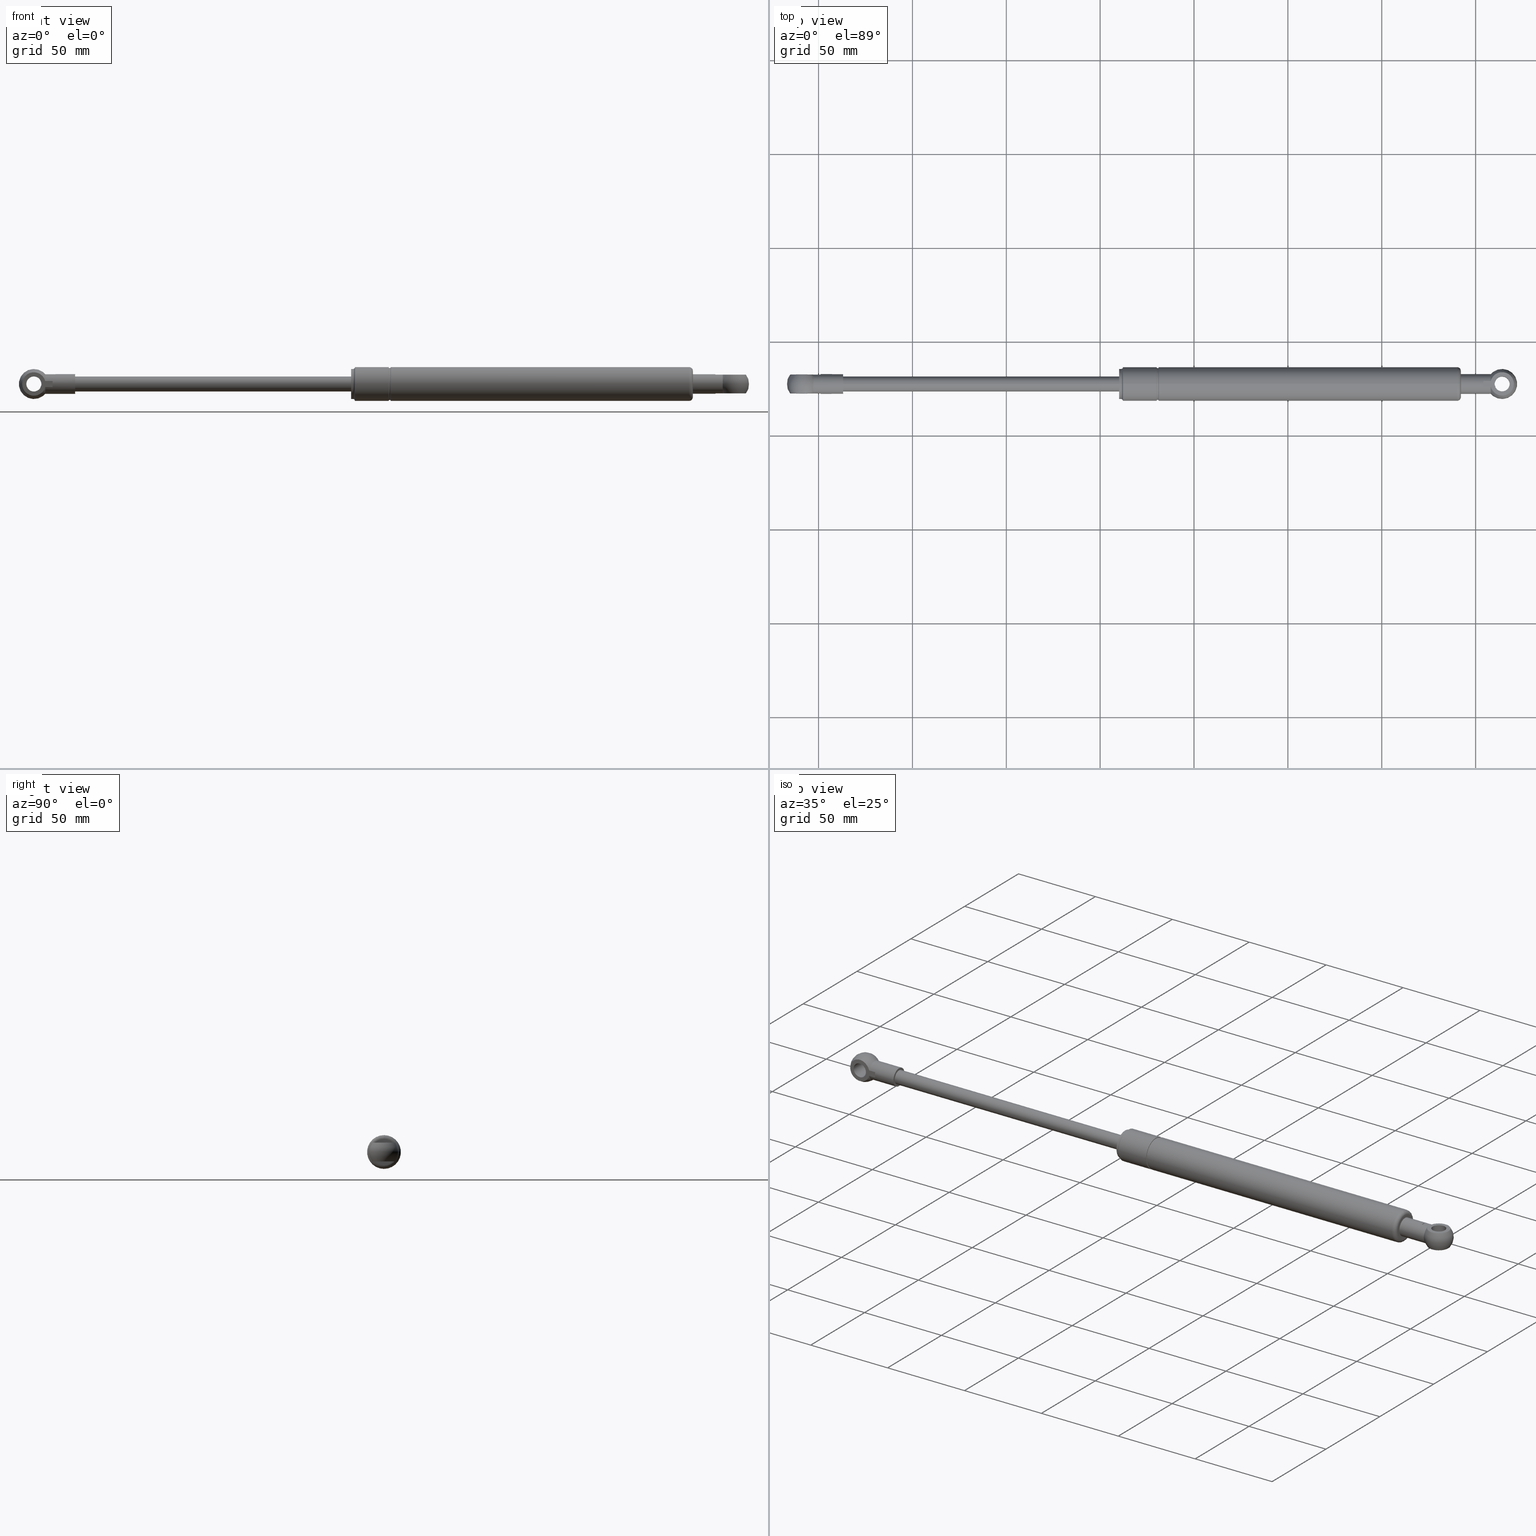
[diagram: canonical four-view strip — front | top / right | iso, engineering-drawing reading convention]
A machine part, canonical four-view strip (front | top / right | iso — engineering-drawing reading convention). The complete STEP part file that produces these views, byte-faithful:
ISO-10303-21;
HEADER;
/* Generated by software containing ST-Developer
 * from STEP Tools, Inc. (www.steptools.com) 
 */

FILE_DESCRIPTION(
/* description */ (''),
/* implementation_level */ '2;1');

FILE_NAME(
/* name */ '\\\\SYNOLOGYNAS\\web\\db2\\SBG-365-H\\\X2\B3C4BA74\X0\\\SB
G-365-H.stp',
/* time_stamp */ '2026-02-11T10:52:35+09:00',
/* author */ ('user'),
/* organization */ (''),
/* preprocessor_version */ 'ST-DEVELOPER v15.6',
/* originating_system */ 'Autodesk Inventor 2015',
/* authorisation */ '');

FILE_SCHEMA (('AUTOMOTIVE_DESIGN { 1 0 10303 214 3 1 1 }'));
ENDSEC;

DATA;
#10=MECHANICAL_DESIGN_GEOMETRIC_PRESENTATION_REPRESENTATION('',(#523,#513,
#520,#514,#522,#515,#521,#519,#518,#525,#517,#524,#528,#526,#530,#527,#531,
#529,#532,#533,#535,#536,#540,#534,#537,#539,#538,#541,#543,#545,#542,#544,
#508,#505,#509,#504,#506,#507,#503,#511,#512,#510,#516),#1085);
#11=ITEM_DEFINED_TRANSFORMATION($,$,#594,#686);
#12=ITEM_DEFINED_TRANSFORMATION($,$,#636,#687);
#13=ITEM_DEFINED_TRANSFORMATION($,$,#645,#688);
#14=ITEM_DEFINED_TRANSFORMATION($,$,#661,#689);
#15=ITEM_DEFINED_TRANSFORMATION($,$,#661,#690);
#16=(
REPRESENTATION_RELATIONSHIP($,$,#1107,#1111)
REPRESENTATION_RELATIONSHIP_WITH_TRANSFORMATION(#11)
SHAPE_REPRESENTATION_RELATIONSHIP()
);
#17=(
REPRESENTATION_RELATIONSHIP($,$,#1108,#1111)
REPRESENTATION_RELATIONSHIP_WITH_TRANSFORMATION(#12)
SHAPE_REPRESENTATION_RELATIONSHIP()
);
#18=(
REPRESENTATION_RELATIONSHIP($,$,#1109,#1111)
REPRESENTATION_RELATIONSHIP_WITH_TRANSFORMATION(#13)
SHAPE_REPRESENTATION_RELATIONSHIP()
);
#19=(
REPRESENTATION_RELATIONSHIP($,$,#1110,#1111)
REPRESENTATION_RELATIONSHIP_WITH_TRANSFORMATION(#14)
SHAPE_REPRESENTATION_RELATIONSHIP()
);
#20=(
REPRESENTATION_RELATIONSHIP($,$,#1110,#1111)
REPRESENTATION_RELATIONSHIP_WITH_TRANSFORMATION(#15)
SHAPE_REPRESENTATION_RELATIONSHIP()
);
#21=CONTEXT_DEPENDENT_SHAPE_REPRESENTATION(#16,#1102);
#22=CONTEXT_DEPENDENT_SHAPE_REPRESENTATION(#17,#1103);
#23=CONTEXT_DEPENDENT_SHAPE_REPRESENTATION(#18,#1104);
#24=CONTEXT_DEPENDENT_SHAPE_REPRESENTATION(#19,#1105);
#25=CONTEXT_DEPENDENT_SHAPE_REPRESENTATION(#20,#1106);
#26=NEXT_ASSEMBLY_USAGE_OCCURRENCE('SBG-365-H (3):1',$,$,#1117,#1113,$);
#27=NEXT_ASSEMBLY_USAGE_OCCURRENCE('SBG-365-H (1):1',$,$,#1117,#1114,$);
#28=NEXT_ASSEMBLY_USAGE_OCCURRENCE('SBG-365-H (2):1',$,$,#1117,#1115,$);
#29=NEXT_ASSEMBLY_USAGE_OCCURRENCE('\X2\B9C1D06CBCFC\X0\:1',$,$,#1117,#1116,
$);
#30=NEXT_ASSEMBLY_USAGE_OCCURRENCE('\X2\B9C1D06CBCFC\X0\:2',$,$,#1117,#1116,
$);
#31=SPHERICAL_SURFACE('',#681,8.);
#32=LINE('',#1045,#38);
#33=LINE('',#1047,#39);
#34=LINE('',#1049,#40);
#35=LINE('',#1056,#41);
#36=LINE('',#1058,#42);
#37=LINE('',#1060,#43);
#38=VECTOR('',#851,3.96365176617517);
#39=VECTOR('',#852,3.20156211871644);
#40=VECTOR('',#853,3.96365176617517);
#41=VECTOR('',#862,3.96365176617518);
#42=VECTOR('',#863,3.20156211871644);
#43=VECTOR('',#864,3.96365176617518);
#44=B_SPLINE_CURVE_WITH_KNOTS('',3,(#1003,#1004,#1005,#1006,#1007,#1008,
#1009,#1010,#1011,#1012,#1013,#1014,#1015,#1016,#1017,#1018,#1019,#1020,
#1021,#1022,#1023,#1024,#1025,#1026,#1027,#1028,#1029,#1030,#1031,#1032,
#1033,#1034,#1035,#1036),.UNSPECIFIED.,.T.,.F.,(4,2,2,2,2,2,2,2,2,2,2,2,
2,2,2,2,4),(0.,0.0330062979999495,0.0660125959998989,0.100331144962749,
0.134649693925599,0.168968242888448,0.203286791851298,0.236293089851248,
0.269299387851197,0.302305685851147,0.335311983851096,0.369630532813946,
0.403949081776796,0.438267630739646,0.472586179702495,0.505592477702445,
0.538598775702394),.UNSPECIFIED.);
#45=SHAPE_REPRESENTATION_RELATIONSHIP('SRR','None',#1107,#49);
#46=SHAPE_REPRESENTATION_RELATIONSHIP('SRR','None',#1108,#50);
#47=SHAPE_REPRESENTATION_RELATIONSHIP('SRR','None',#1109,#51);
#48=SHAPE_REPRESENTATION_RELATIONSHIP('SRR','None',#1110,#52);
#49=ADVANCED_BREP_SHAPE_REPRESENTATION($,(#53),#1080);
#50=ADVANCED_BREP_SHAPE_REPRESENTATION($,(#54),#1081);
#51=ADVANCED_BREP_SHAPE_REPRESENTATION($,(#55),#1082);
#52=ADVANCED_BREP_SHAPE_REPRESENTATION($,(#56),#1083);
#53=MANIFOLD_SOLID_BREP('\X2\C194B9ACB4DC\X0\1',#590);
#54=MANIFOLD_SOLID_BREP('\X2\C194B9ACB4DC\X0\1',#591);
#55=MANIFOLD_SOLID_BREP('\X2\C194B9ACB4DC\X0\1',#592);
#56=MANIFOLD_SOLID_BREP('\X2\C194B9ACB4DC\X0\2',#593);
#57=CONICAL_SURFACE('',#620,2.75,44.9999999999996);
#58=CONICAL_SURFACE('',#646,2.75,45.);
#59=CONICAL_SURFACE('',#662,2.7085,45.0000000000001);
#60=CONICAL_SURFACE('',#669,1.22925,59.);
#61=CYLINDRICAL_SURFACE('',#600,8.50000000000001);
#62=CYLINDRICAL_SURFACE('',#606,9.00000000000001);
#63=CYLINDRICAL_SURFACE('',#613,0.999999999999999);
#64=CYLINDRICAL_SURFACE('',#617,6.);
#65=CYLINDRICAL_SURFACE('',#619,7.00000000000002);
#66=CYLINDRICAL_SURFACE('',#624,3.);
#67=CYLINDRICAL_SURFACE('',#628,8.);
#68=CYLINDRICAL_SURFACE('',#633,9.00000000000001);
#69=CYLINDRICAL_SURFACE('',#637,7.);
#70=CYLINDRICAL_SURFACE('',#642,4.);
#71=CYLINDRICAL_SURFACE('',#649,3.);
#72=CYLINDRICAL_SURFACE('',#659,6.99999999999996);
#73=CYLINDRICAL_SURFACE('',#660,4.00000000000001);
#74=CYLINDRICAL_SURFACE('',#665,2.4585);
#75=CYLINDRICAL_SURFACE('',#670,4.);
#76=CYLINDRICAL_SURFACE('',#684,5.25);
#77=TOROIDAL_SURFACE('',#598,8.70000000000002,0.200000000000002);
#78=TOROIDAL_SURFACE('',#602,8.70000000000001,0.199999999999999);
#79=TOROIDAL_SURFACE('',#614,9.,3.);
#80=TOROIDAL_SURFACE('',#626,9.,1.);
#81=TOROIDAL_SURFACE('',#630,7.00000000000002,2.);
#82=FACE_BOUND('',#165,.T.);
#83=FACE_BOUND('',#167,.T.);
#84=FACE_BOUND('',#169,.T.);
#85=FACE_BOUND('',#171,.T.);
#86=FACE_BOUND('',#173,.T.);
#87=FACE_BOUND('',#175,.T.);
#88=FACE_BOUND('',#178,.T.);
#89=FACE_BOUND('',#180,.T.);
#90=FACE_BOUND('',#182,.T.);
#91=FACE_BOUND('',#184,.T.);
#92=FACE_BOUND('',#186,.T.);
#93=FACE_BOUND('',#188,.T.);
#94=FACE_BOUND('',#191,.T.);
#95=FACE_BOUND('',#193,.T.);
#96=FACE_BOUND('',#195,.T.);
#97=FACE_BOUND('',#197,.T.);
#98=FACE_BOUND('',#199,.T.);
#99=FACE_BOUND('',#201,.T.);
#100=FACE_BOUND('',#203,.T.);
#101=FACE_BOUND('',#205,.T.);
#102=FACE_BOUND('',#207,.T.);
#103=FACE_BOUND('',#209,.T.);
#104=FACE_BOUND('',#211,.T.);
#105=FACE_BOUND('',#213,.T.);
#106=FACE_BOUND('',#215,.T.);
#107=FACE_BOUND('',#218,.T.);
#108=FACE_BOUND('',#220,.T.);
#109=FACE_BOUND('',#223,.T.);
#110=FACE_BOUND('',#225,.T.);
#111=FACE_BOUND('',#227,.T.);
#112=FACE_BOUND('',#229,.T.);
#113=FACE_BOUND('',#231,.T.);
#114=FACE_BOUND('',#233,.T.);
#115=FACE_BOUND('',#235,.T.);
#116=FACE_BOUND('',#236,.T.);
#117=FACE_BOUND('',#238,.T.);
#118=FACE_BOUND('',#241,.T.);
#119=FACE_BOUND('',#245,.T.);
#120=FACE_OUTER_BOUND('',#164,.T.);
#121=FACE_OUTER_BOUND('',#166,.T.);
#122=FACE_OUTER_BOUND('',#168,.T.);
#123=FACE_OUTER_BOUND('',#170,.T.);
#124=FACE_OUTER_BOUND('',#172,.T.);
#125=FACE_OUTER_BOUND('',#174,.T.);
#126=FACE_OUTER_BOUND('',#176,.T.);
#127=FACE_OUTER_BOUND('',#177,.T.);
#128=FACE_OUTER_BOUND('',#179,.T.);
#129=FACE_OUTER_BOUND('',#181,.T.);
#130=FACE_OUTER_BOUND('',#183,.T.);
#131=FACE_OUTER_BOUND('',#185,.T.);
#132=FACE_OUTER_BOUND('',#187,.T.);
#133=FACE_OUTER_BOUND('',#189,.T.);
#134=FACE_OUTER_BOUND('',#190,.T.);
#135=FACE_OUTER_BOUND('',#192,.T.);
#136=FACE_OUTER_BOUND('',#194,.T.);
#137=FACE_OUTER_BOUND('',#196,.T.);
#138=FACE_OUTER_BOUND('',#198,.T.);
#139=FACE_OUTER_BOUND('',#200,.T.);
#140=FACE_OUTER_BOUND('',#202,.T.);
#141=FACE_OUTER_BOUND('',#204,.T.);
#142=FACE_OUTER_BOUND('',#206,.T.);
#143=FACE_OUTER_BOUND('',#208,.T.);
#144=FACE_OUTER_BOUND('',#210,.T.);
#145=FACE_OUTER_BOUND('',#212,.T.);
#146=FACE_OUTER_BOUND('',#214,.T.);
#147=FACE_OUTER_BOUND('',#216,.T.);
#148=FACE_OUTER_BOUND('',#217,.T.);
#149=FACE_OUTER_BOUND('',#219,.T.);
#150=FACE_OUTER_BOUND('',#221,.T.);
#151=FACE_OUTER_BOUND('',#222,.T.);
#152=FACE_OUTER_BOUND('',#224,.T.);
#153=FACE_OUTER_BOUND('',#226,.T.);
#154=FACE_OUTER_BOUND('',#228,.T.);
#155=FACE_OUTER_BOUND('',#230,.T.);
#156=FACE_OUTER_BOUND('',#232,.T.);
#157=FACE_OUTER_BOUND('',#234,.T.);
#158=FACE_OUTER_BOUND('',#237,.T.);
#159=FACE_OUTER_BOUND('',#239,.T.);
#160=FACE_OUTER_BOUND('',#240,.T.);
#161=FACE_OUTER_BOUND('',#242,.T.);
#162=FACE_OUTER_BOUND('',#243,.T.);
#163=FACE_OUTER_BOUND('',#244,.T.);
#164=EDGE_LOOP('',(#385));
#165=EDGE_LOOP('',(#386));
#166=EDGE_LOOP('',(#387));
#167=EDGE_LOOP('',(#388));
#168=EDGE_LOOP('',(#389));
#169=EDGE_LOOP('',(#390));
#170=EDGE_LOOP('',(#391));
#171=EDGE_LOOP('',(#392));
#172=EDGE_LOOP('',(#393));
#173=EDGE_LOOP('',(#394));
#174=EDGE_LOOP('',(#395));
#175=EDGE_LOOP('',(#396));
#176=EDGE_LOOP('',(#397));
#177=EDGE_LOOP('',(#398));
#178=EDGE_LOOP('',(#399));
#179=EDGE_LOOP('',(#400));
#180=EDGE_LOOP('',(#401));
#181=EDGE_LOOP('',(#402));
#182=EDGE_LOOP('',(#403));
#183=EDGE_LOOP('',(#404));
#184=EDGE_LOOP('',(#405));
#185=EDGE_LOOP('',(#406));
#186=EDGE_LOOP('',(#407));
#187=EDGE_LOOP('',(#408));
#188=EDGE_LOOP('',(#409));
#189=EDGE_LOOP('',(#410));
#190=EDGE_LOOP('',(#411));
#191=EDGE_LOOP('',(#412));
#192=EDGE_LOOP('',(#413));
#193=EDGE_LOOP('',(#414));
#194=EDGE_LOOP('',(#415));
#195=EDGE_LOOP('',(#416));
#196=EDGE_LOOP('',(#417));
#197=EDGE_LOOP('',(#418));
#198=EDGE_LOOP('',(#419));
#199=EDGE_LOOP('',(#420));
#200=EDGE_LOOP('',(#421));
#201=EDGE_LOOP('',(#422));
#202=EDGE_LOOP('',(#423));
#203=EDGE_LOOP('',(#424));
#204=EDGE_LOOP('',(#425));
#205=EDGE_LOOP('',(#426));
#206=EDGE_LOOP('',(#427));
#207=EDGE_LOOP('',(#428));
#208=EDGE_LOOP('',(#429));
#209=EDGE_LOOP('',(#430));
#210=EDGE_LOOP('',(#431));
#211=EDGE_LOOP('',(#432));
#212=EDGE_LOOP('',(#433));
#213=EDGE_LOOP('',(#434));
#214=EDGE_LOOP('',(#435));
#215=EDGE_LOOP('',(#436));
#216=EDGE_LOOP('',(#437));
#217=EDGE_LOOP('',(#438));
#218=EDGE_LOOP('',(#439));
#219=EDGE_LOOP('',(#440));
#220=EDGE_LOOP('',(#441));
#221=EDGE_LOOP('',(#442));
#222=EDGE_LOOP('',(#443));
#223=EDGE_LOOP('',(#444));
#224=EDGE_LOOP('',(#445));
#225=EDGE_LOOP('',(#446));
#226=EDGE_LOOP('',(#447));
#227=EDGE_LOOP('',(#448));
#228=EDGE_LOOP('',(#449));
#229=EDGE_LOOP('',(#450));
#230=EDGE_LOOP('',(#451));
#231=EDGE_LOOP('',(#452));
#232=EDGE_LOOP('',(#453));
#233=EDGE_LOOP('',(#454));
#234=EDGE_LOOP('',(#455));
#235=EDGE_LOOP('',(#456));
#236=EDGE_LOOP('',(#457));
#237=EDGE_LOOP('',(#458,#459,#460,#461));
#238=EDGE_LOOP('',(#462));
#239=EDGE_LOOP('',(#463,#464));
#240=EDGE_LOOP('',(#465,#466,#467,#468));
#241=EDGE_LOOP('',(#469));
#242=EDGE_LOOP('',(#470,#471));
#243=EDGE_LOOP('',(#472,#473,#474,#475));
#244=EDGE_LOOP('',(#476,#477,#478,#479,#480,#481,#482,#483));
#245=EDGE_LOOP('',(#484));
#246=CIRCLE('',#596,9.00000000000001);
#247=CIRCLE('',#597,8.70000000000001);
#248=CIRCLE('',#599,8.50000000000001);
#249=CIRCLE('',#601,8.50000000000001);
#250=CIRCLE('',#603,8.70000000000001);
#251=CIRCLE('',#605,9.00000000000001);
#252=CIRCLE('',#607,9.00000000000003);
#253=CIRCLE('',#609,0.999999999999999);
#254=CIRCLE('',#611,7.00000000000002);
#255=CIRCLE('',#612,0.999999999999999);
#256=CIRCLE('',#615,6.);
#257=CIRCLE('',#616,7.00000000000002);
#258=CIRCLE('',#618,6.);
#259=CIRCLE('',#621,2.5);
#260=CIRCLE('',#622,3.);
#261=CIRCLE('',#625,3.);
#262=CIRCLE('',#627,8.);
#263=CIRCLE('',#629,8.);
#264=CIRCLE('',#631,9.00000000000001);
#265=CIRCLE('',#632,7.00000000000002);
#266=CIRCLE('',#638,7.);
#267=CIRCLE('',#639,7.);
#268=CIRCLE('',#641,4.);
#269=CIRCLE('',#643,4.);
#270=CIRCLE('',#647,3.);
#271=CIRCLE('',#648,2.5);
#272=CIRCLE('',#650,3.);
#273=CIRCLE('',#653,4.00000000000001);
#274=CIRCLE('',#655,6.99999999999995);
#275=CIRCLE('',#656,4.);
#276=CIRCLE('',#658,6.99999999999998);
#277=CIRCLE('',#663,2.4585);
#278=CIRCLE('',#664,2.9585);
#279=CIRCLE('',#666,2.4585);
#280=CIRCLE('',#668,5.25);
#281=CIRCLE('',#671,4.);
#282=CIRCLE('',#672,4.);
#283=CIRCLE('',#674,6.2449979983984);
#284=CIRCLE('',#676,5.25);
#285=CIRCLE('',#678,6.2449979983984);
#286=CIRCLE('',#680,5.25);
#287=CIRCLE('',#682,5.25);
#288=CIRCLE('',#683,5.25);
#289=VERTEX_POINT('',#893);
#290=VERTEX_POINT('',#895);
#291=VERTEX_POINT('',#898);
#292=VERTEX_POINT('',#901);
#293=VERTEX_POINT('',#904);
#294=VERTEX_POINT('',#907);
#295=VERTEX_POINT('',#910);
#296=VERTEX_POINT('',#913);
#297=VERTEX_POINT('',#916);
#298=VERTEX_POINT('',#918);
#299=VERTEX_POINT('',#922);
#300=VERTEX_POINT('',#924);
#301=VERTEX_POINT('',#927);
#302=VERTEX_POINT('',#931);
#303=VERTEX_POINT('',#933);
#304=VERTEX_POINT('',#937);
#305=VERTEX_POINT('',#940);
#306=VERTEX_POINT('',#943);
#307=VERTEX_POINT('',#946);
#308=VERTEX_POINT('',#948);
#309=VERTEX_POINT('',#955);
#310=VERTEX_POINT('',#957);
#311=VERTEX_POINT('',#960);
#312=VERTEX_POINT('',#963);
#313=VERTEX_POINT('',#968);
#314=VERTEX_POINT('',#970);
#315=VERTEX_POINT('',#973);
#316=VERTEX_POINT('',#977);
#317=VERTEX_POINT('',#980);
#318=VERTEX_POINT('',#982);
#319=VERTEX_POINT('',#985);
#320=VERTEX_POINT('',#991);
#321=VERTEX_POINT('',#993);
#322=VERTEX_POINT('',#996);
#323=VERTEX_POINT('',#999);
#324=VERTEX_POINT('',#1002);
#325=VERTEX_POINT('',#1038);
#326=VERTEX_POINT('',#1040);
#327=VERTEX_POINT('',#1043);
#328=VERTEX_POINT('',#1044);
#329=VERTEX_POINT('',#1046);
#330=VERTEX_POINT('',#1048);
#331=VERTEX_POINT('',#1054);
#332=VERTEX_POINT('',#1055);
#333=VERTEX_POINT('',#1057);
#334=VERTEX_POINT('',#1059);
#335=EDGE_CURVE('',#289,#289,#246,.T.);
#336=EDGE_CURVE('',#290,#290,#247,.T.);
#337=EDGE_CURVE('',#291,#291,#248,.T.);
#338=EDGE_CURVE('',#292,#292,#249,.T.);
#339=EDGE_CURVE('',#293,#293,#250,.T.);
#340=EDGE_CURVE('',#294,#294,#251,.T.);
#341=EDGE_CURVE('',#295,#295,#252,.T.);
#342=EDGE_CURVE('',#296,#296,#253,.T.);
#343=EDGE_CURVE('',#297,#297,#254,.T.);
#344=EDGE_CURVE('',#298,#298,#255,.T.);
#345=EDGE_CURVE('',#299,#299,#256,.T.);
#346=EDGE_CURVE('',#300,#300,#257,.F.);
#347=EDGE_CURVE('',#301,#301,#258,.T.);
#348=EDGE_CURVE('',#302,#302,#259,.T.);
#349=EDGE_CURVE('',#303,#303,#260,.T.);
#350=EDGE_CURVE('',#304,#304,#261,.T.);
#351=EDGE_CURVE('',#305,#305,#262,.T.);
#352=EDGE_CURVE('',#306,#306,#263,.T.);
#353=EDGE_CURVE('',#307,#307,#264,.T.);
#354=EDGE_CURVE('',#308,#308,#265,.T.);
#355=EDGE_CURVE('',#309,#309,#266,.T.);
#356=EDGE_CURVE('',#310,#310,#267,.T.);
#357=EDGE_CURVE('',#311,#311,#268,.T.);
#358=EDGE_CURVE('',#312,#312,#269,.T.);
#359=EDGE_CURVE('',#313,#313,#270,.T.);
#360=EDGE_CURVE('',#314,#314,#271,.T.);
#361=EDGE_CURVE('',#315,#315,#272,.T.);
#362=EDGE_CURVE('',#316,#316,#273,.T.);
#363=EDGE_CURVE('',#317,#317,#274,.T.);
#364=EDGE_CURVE('',#318,#318,#275,.T.);
#365=EDGE_CURVE('',#319,#319,#276,.T.);
#366=EDGE_CURVE('',#320,#320,#277,.T.);
#367=EDGE_CURVE('',#321,#321,#278,.T.);
#368=EDGE_CURVE('',#322,#322,#279,.T.);
#369=EDGE_CURVE('',#323,#323,#280,.T.);
#370=EDGE_CURVE('',#324,#324,#44,.T.);
#371=EDGE_CURVE('',#325,#325,#281,.T.);
#372=EDGE_CURVE('',#326,#326,#282,.T.);
#373=EDGE_CURVE('',#327,#328,#32,.T.);
#374=EDGE_CURVE('',#327,#329,#33,.T.);
#375=EDGE_CURVE('',#330,#329,#34,.T.);
#376=EDGE_CURVE('',#328,#330,#283,.T.);
#377=EDGE_CURVE('',#329,#327,#284,.T.);
#378=EDGE_CURVE('',#331,#332,#35,.T.);
#379=EDGE_CURVE('',#331,#333,#36,.T.);
#380=EDGE_CURVE('',#334,#333,#37,.T.);
#381=EDGE_CURVE('',#332,#334,#285,.T.);
#382=EDGE_CURVE('',#333,#331,#286,.T.);
#383=EDGE_CURVE('',#330,#332,#287,.T.);
#384=EDGE_CURVE('',#334,#328,#288,.T.);
#385=ORIENTED_EDGE('',*,*,#335,.F.);
#386=ORIENTED_EDGE('',*,*,#336,.T.);
#387=ORIENTED_EDGE('',*,*,#336,.F.);
#388=ORIENTED_EDGE('',*,*,#337,.T.);
#389=ORIENTED_EDGE('',*,*,#337,.F.);
#390=ORIENTED_EDGE('',*,*,#338,.T.);
#391=ORIENTED_EDGE('',*,*,#338,.F.);
#392=ORIENTED_EDGE('',*,*,#339,.T.);
#393=ORIENTED_EDGE('',*,*,#340,.F.);
#394=ORIENTED_EDGE('',*,*,#339,.F.);
#395=ORIENTED_EDGE('',*,*,#341,.T.);
#396=ORIENTED_EDGE('',*,*,#340,.T.);
#397=ORIENTED_EDGE('',*,*,#342,.T.);
#398=ORIENTED_EDGE('',*,*,#343,.T.);
#399=ORIENTED_EDGE('',*,*,#344,.F.);
#400=ORIENTED_EDGE('',*,*,#342,.F.);
#401=ORIENTED_EDGE('',*,*,#344,.T.);
#402=ORIENTED_EDGE('',*,*,#345,.F.);
#403=ORIENTED_EDGE('',*,*,#346,.T.);
#404=ORIENTED_EDGE('',*,*,#347,.F.);
#405=ORIENTED_EDGE('',*,*,#345,.T.);
#406=ORIENTED_EDGE('',*,*,#343,.F.);
#407=ORIENTED_EDGE('',*,*,#346,.F.);
#408=ORIENTED_EDGE('',*,*,#348,.T.);
#409=ORIENTED_EDGE('',*,*,#349,.T.);
#410=ORIENTED_EDGE('',*,*,#348,.F.);
#411=ORIENTED_EDGE('',*,*,#350,.F.);
#412=ORIENTED_EDGE('',*,*,#349,.F.);
#413=ORIENTED_EDGE('',*,*,#351,.T.);
#414=ORIENTED_EDGE('',*,*,#341,.F.);
#415=ORIENTED_EDGE('',*,*,#352,.T.);
#416=ORIENTED_EDGE('',*,*,#351,.F.);
#417=ORIENTED_EDGE('',*,*,#353,.T.);
#418=ORIENTED_EDGE('',*,*,#354,.T.);
#419=ORIENTED_EDGE('',*,*,#335,.T.);
#420=ORIENTED_EDGE('',*,*,#353,.F.);
#421=ORIENTED_EDGE('',*,*,#354,.F.);
#422=ORIENTED_EDGE('',*,*,#350,.T.);
#423=ORIENTED_EDGE('',*,*,#352,.F.);
#424=ORIENTED_EDGE('',*,*,#347,.T.);
#425=ORIENTED_EDGE('',*,*,#355,.F.);
#426=ORIENTED_EDGE('',*,*,#356,.T.);
#427=ORIENTED_EDGE('',*,*,#355,.T.);
#428=ORIENTED_EDGE('',*,*,#357,.F.);
#429=ORIENTED_EDGE('',*,*,#358,.F.);
#430=ORIENTED_EDGE('',*,*,#357,.T.);
#431=ORIENTED_EDGE('',*,*,#356,.F.);
#432=ORIENTED_EDGE('',*,*,#358,.T.);
#433=ORIENTED_EDGE('',*,*,#359,.T.);
#434=ORIENTED_EDGE('',*,*,#360,.T.);
#435=ORIENTED_EDGE('',*,*,#361,.T.);
#436=ORIENTED_EDGE('',*,*,#359,.F.);
#437=ORIENTED_EDGE('',*,*,#360,.F.);
#438=ORIENTED_EDGE('',*,*,#362,.F.);
#439=ORIENTED_EDGE('',*,*,#361,.F.);
#440=ORIENTED_EDGE('',*,*,#363,.T.);
#441=ORIENTED_EDGE('',*,*,#364,.F.);
#442=ORIENTED_EDGE('',*,*,#365,.F.);
#443=ORIENTED_EDGE('',*,*,#363,.F.);
#444=ORIENTED_EDGE('',*,*,#365,.T.);
#445=ORIENTED_EDGE('',*,*,#362,.T.);
#446=ORIENTED_EDGE('',*,*,#364,.T.);
#447=ORIENTED_EDGE('',*,*,#366,.T.);
#448=ORIENTED_EDGE('',*,*,#367,.T.);
#449=ORIENTED_EDGE('',*,*,#368,.F.);
#450=ORIENTED_EDGE('',*,*,#366,.F.);
#451=ORIENTED_EDGE('',*,*,#369,.T.);
#452=ORIENTED_EDGE('',*,*,#367,.F.);
#453=ORIENTED_EDGE('',*,*,#370,.F.);
#454=ORIENTED_EDGE('',*,*,#368,.T.);
#455=ORIENTED_EDGE('',*,*,#371,.F.);
#456=ORIENTED_EDGE('',*,*,#370,.T.);
#457=ORIENTED_EDGE('',*,*,#372,.F.);
#458=ORIENTED_EDGE('',*,*,#373,.F.);
#459=ORIENTED_EDGE('',*,*,#374,.T.);
#460=ORIENTED_EDGE('',*,*,#375,.F.);
#461=ORIENTED_EDGE('',*,*,#376,.F.);
#462=ORIENTED_EDGE('',*,*,#371,.T.);
#463=ORIENTED_EDGE('',*,*,#377,.F.);
#464=ORIENTED_EDGE('',*,*,#374,.F.);
#465=ORIENTED_EDGE('',*,*,#378,.F.);
#466=ORIENTED_EDGE('',*,*,#379,.T.);
#467=ORIENTED_EDGE('',*,*,#380,.F.);
#468=ORIENTED_EDGE('',*,*,#381,.F.);
#469=ORIENTED_EDGE('',*,*,#372,.T.);
#470=ORIENTED_EDGE('',*,*,#382,.F.);
#471=ORIENTED_EDGE('',*,*,#379,.F.);
#472=ORIENTED_EDGE('',*,*,#376,.T.);
#473=ORIENTED_EDGE('',*,*,#383,.T.);
#474=ORIENTED_EDGE('',*,*,#381,.T.);
#475=ORIENTED_EDGE('',*,*,#384,.T.);
#476=ORIENTED_EDGE('',*,*,#373,.T.);
#477=ORIENTED_EDGE('',*,*,#384,.F.);
#478=ORIENTED_EDGE('',*,*,#380,.T.);
#479=ORIENTED_EDGE('',*,*,#382,.T.);
#480=ORIENTED_EDGE('',*,*,#378,.T.);
#481=ORIENTED_EDGE('',*,*,#383,.F.);
#482=ORIENTED_EDGE('',*,*,#375,.T.);
#483=ORIENTED_EDGE('',*,*,#377,.T.);
#484=ORIENTED_EDGE('',*,*,#369,.F.);
#485=PLANE('',#595);
#486=PLANE('',#604);
#487=PLANE('',#608);
#488=PLANE('',#610);
#489=PLANE('',#623);
#490=PLANE('',#634);
#491=PLANE('',#635);
#492=PLANE('',#640);
#493=PLANE('',#644);
#494=PLANE('',#651);
#495=PLANE('',#652);
#496=PLANE('',#654);
#497=PLANE('',#657);
#498=PLANE('',#667);
#499=PLANE('',#673);
#500=PLANE('',#675);
#501=PLANE('',#677);
#502=PLANE('',#679);
#503=STYLED_ITEM('',(#1138),#546);
#504=STYLED_ITEM('',(#1138),#547);
#505=STYLED_ITEM('',(#1138),#548);
#506=STYLED_ITEM('',(#1138),#549);
#507=STYLED_ITEM('',(#1138),#550);
#508=STYLED_ITEM('',(#1138),#551);
#509=STYLED_ITEM('',(#1138),#552);
#510=STYLED_ITEM('',(#1138),#553);
#511=STYLED_ITEM('',(#1138),#554);
#512=STYLED_ITEM('',(#1138),#555);
#513=STYLED_ITEM('',(#1138),#556);
#514=STYLED_ITEM('',(#1138),#557);
#515=STYLED_ITEM('',(#1138),#558);
#516=STYLED_ITEM('',(#1138),#559);
#517=STYLED_ITEM('',(#1138),#560);
#518=STYLED_ITEM('',(#1138),#561);
#519=STYLED_ITEM('',(#1138),#562);
#520=STYLED_ITEM('',(#1138),#563);
#521=STYLED_ITEM('',(#1138),#564);
#522=STYLED_ITEM('',(#1138),#565);
#523=STYLED_ITEM('',(#1138),#566);
#524=STYLED_ITEM('',(#1137),#53);
#525=STYLED_ITEM('',(#1139),#567);
#526=STYLED_ITEM('',(#1139),#568);
#527=STYLED_ITEM('',(#1139),#569);
#528=STYLED_ITEM('',(#1139),#570);
#529=STYLED_ITEM('',(#1139),#54);
#530=STYLED_ITEM('',(#1140),#575);
#531=STYLED_ITEM('',(#1140),#576);
#532=STYLED_ITEM('',(#1140),#577);
#533=STYLED_ITEM('',(#1140),#55);
#534=STYLED_ITEM('',(#1141),#579);
#535=STYLED_ITEM('',(#1141),#580);
#536=STYLED_ITEM('',(#1141),#581);
#537=STYLED_ITEM('',(#1141),#582);
#538=STYLED_ITEM('',(#1141),#583);
#539=STYLED_ITEM('',(#1141),#584);
#540=STYLED_ITEM('',(#1141),#585);
#541=STYLED_ITEM('',(#1141),#586);
#542=STYLED_ITEM('',(#1141),#587);
#543=STYLED_ITEM('',(#1141),#588);
#544=STYLED_ITEM('',(#1141),#589);
#545=STYLED_ITEM('',(#1137),#56);
#546=ADVANCED_FACE('',(#120,#82),#485,.F.);
#547=ADVANCED_FACE('',(#121,#83),#77,.F.);
#548=ADVANCED_FACE('',(#122,#84),#61,.T.);
#549=ADVANCED_FACE('',(#123,#85),#78,.F.);
#550=ADVANCED_FACE('',(#124,#86),#486,.F.);
#551=ADVANCED_FACE('',(#125,#87),#62,.T.);
#552=ADVANCED_FACE('',(#126),#487,.F.);
#553=ADVANCED_FACE('',(#127,#88),#488,.F.);
#554=ADVANCED_FACE('',(#128,#89),#63,.F.);
#555=ADVANCED_FACE('',(#129,#90),#79,.T.);
#556=ADVANCED_FACE('',(#130,#91),#64,.F.);
#557=ADVANCED_FACE('',(#131,#92),#65,.F.);
#558=ADVANCED_FACE('',(#132,#93),#57,.T.);
#559=ADVANCED_FACE('',(#133),#489,.T.);
#560=ADVANCED_FACE('',(#134,#94),#66,.T.);
#561=ADVANCED_FACE('',(#135,#95),#80,.F.);
#562=ADVANCED_FACE('',(#136,#96),#67,.T.);
#563=ADVANCED_FACE('',(#137,#97),#81,.T.);
#564=ADVANCED_FACE('',(#138,#98),#68,.T.);
#565=ADVANCED_FACE('',(#139,#99),#490,.T.);
#566=ADVANCED_FACE('',(#140,#100),#491,.T.);
#567=ADVANCED_FACE('',(#141,#101),#69,.T.);
#568=ADVANCED_FACE('',(#142,#102),#492,.T.);
#569=ADVANCED_FACE('',(#143,#103),#70,.F.);
#570=ADVANCED_FACE('',(#144,#104),#493,.T.);
#571=ADVANCED_FACE('',(#145,#105),#58,.T.);
#572=ADVANCED_FACE('',(#146,#106),#71,.T.);
#573=ADVANCED_FACE('',(#147),#494,.F.);
#574=ADVANCED_FACE('',(#148,#107),#495,.F.);
#575=ADVANCED_FACE('',(#149,#108),#496,.T.);
#576=ADVANCED_FACE('',(#150),#497,.T.);
#577=ADVANCED_FACE('',(#151,#109),#72,.T.);
#578=ADVANCED_FACE('',(#152,#110),#73,.T.);
#579=ADVANCED_FACE('',(#153,#111),#59,.F.);
#580=ADVANCED_FACE('',(#154,#112),#74,.F.);
#581=ADVANCED_FACE('',(#155,#113),#498,.T.);
#582=ADVANCED_FACE('',(#156,#114),#60,.F.);
#583=ADVANCED_FACE('',(#157,#115,#116),#75,.F.);
#584=ADVANCED_FACE('',(#158,#117),#499,.F.);
#585=ADVANCED_FACE('',(#159),#500,.F.);
#586=ADVANCED_FACE('',(#160,#118),#501,.F.);
#587=ADVANCED_FACE('',(#161),#502,.F.);
#588=ADVANCED_FACE('',(#162),#31,.T.);
#589=ADVANCED_FACE('',(#163,#119),#76,.T.);
#590=CLOSED_SHELL('',(#546,#547,#548,#549,#550,#551,#552,#553,#554,#555,
#556,#557,#558,#559,#560,#561,#562,#563,#564,#565,#566));
#591=CLOSED_SHELL('',(#567,#568,#569,#570));
#592=CLOSED_SHELL('',(#571,#572,#573,#574,#575,#576,#577,#578));
#593=CLOSED_SHELL('',(#579,#580,#581,#582,#583,#584,#585,#586,#587,#588,
#589));
#594=AXIS2_PLACEMENT_3D('placement',#891,#691,#692);
#595=AXIS2_PLACEMENT_3D('',#892,#693,#694);
#596=AXIS2_PLACEMENT_3D('',#894,#695,#696);
#597=AXIS2_PLACEMENT_3D('',#896,#697,#698);
#598=AXIS2_PLACEMENT_3D('',#897,#699,#700);
#599=AXIS2_PLACEMENT_3D('',#899,#701,#702);
#600=AXIS2_PLACEMENT_3D('',#900,#703,#704);
#601=AXIS2_PLACEMENT_3D('',#902,#705,#706);
#602=AXIS2_PLACEMENT_3D('',#903,#707,#708);
#603=AXIS2_PLACEMENT_3D('',#905,#709,#710);
#604=AXIS2_PLACEMENT_3D('',#906,#711,#712);
#605=AXIS2_PLACEMENT_3D('',#908,#713,#714);
#606=AXIS2_PLACEMENT_3D('',#909,#715,#716);
#607=AXIS2_PLACEMENT_3D('',#911,#717,#718);
#608=AXIS2_PLACEMENT_3D('',#912,#719,#720);
#609=AXIS2_PLACEMENT_3D('',#914,#721,#722);
#610=AXIS2_PLACEMENT_3D('',#915,#723,#724);
#611=AXIS2_PLACEMENT_3D('',#917,#725,#726);
#612=AXIS2_PLACEMENT_3D('',#919,#727,#728);
#613=AXIS2_PLACEMENT_3D('',#920,#729,#730);
#614=AXIS2_PLACEMENT_3D('',#921,#731,#732);
#615=AXIS2_PLACEMENT_3D('',#923,#733,#734);
#616=AXIS2_PLACEMENT_3D('',#925,#735,#736);
#617=AXIS2_PLACEMENT_3D('',#926,#737,#738);
#618=AXIS2_PLACEMENT_3D('',#928,#739,#740);
#619=AXIS2_PLACEMENT_3D('',#929,#741,#742);
#620=AXIS2_PLACEMENT_3D('',#930,#743,#744);
#621=AXIS2_PLACEMENT_3D('',#932,#745,#746);
#622=AXIS2_PLACEMENT_3D('',#934,#747,#748);
#623=AXIS2_PLACEMENT_3D('',#935,#749,#750);
#624=AXIS2_PLACEMENT_3D('',#936,#751,#752);
#625=AXIS2_PLACEMENT_3D('',#938,#753,#754);
#626=AXIS2_PLACEMENT_3D('',#939,#755,#756);
#627=AXIS2_PLACEMENT_3D('',#941,#757,#758);
#628=AXIS2_PLACEMENT_3D('',#942,#759,#760);
#629=AXIS2_PLACEMENT_3D('',#944,#761,#762);
#630=AXIS2_PLACEMENT_3D('',#945,#763,#764);
#631=AXIS2_PLACEMENT_3D('',#947,#765,#766);
#632=AXIS2_PLACEMENT_3D('',#949,#767,#768);
#633=AXIS2_PLACEMENT_3D('',#950,#769,#770);
#634=AXIS2_PLACEMENT_3D('',#951,#771,#772);
#635=AXIS2_PLACEMENT_3D('',#952,#773,#774);
#636=AXIS2_PLACEMENT_3D('placement',#953,#775,#776);
#637=AXIS2_PLACEMENT_3D('',#954,#777,#778);
#638=AXIS2_PLACEMENT_3D('',#956,#779,#780);
#639=AXIS2_PLACEMENT_3D('',#958,#781,#782);
#640=AXIS2_PLACEMENT_3D('',#959,#783,#784);
#641=AXIS2_PLACEMENT_3D('',#961,#785,#786);
#642=AXIS2_PLACEMENT_3D('',#962,#787,#788);
#643=AXIS2_PLACEMENT_3D('',#964,#789,#790);
#644=AXIS2_PLACEMENT_3D('',#965,#791,#792);
#645=AXIS2_PLACEMENT_3D('placement',#966,#793,#794);
#646=AXIS2_PLACEMENT_3D('',#967,#795,#796);
#647=AXIS2_PLACEMENT_3D('',#969,#797,#798);
#648=AXIS2_PLACEMENT_3D('',#971,#799,#800);
#649=AXIS2_PLACEMENT_3D('',#972,#801,#802);
#650=AXIS2_PLACEMENT_3D('',#974,#803,#804);
#651=AXIS2_PLACEMENT_3D('',#975,#805,#806);
#652=AXIS2_PLACEMENT_3D('',#976,#807,#808);
#653=AXIS2_PLACEMENT_3D('',#978,#809,#810);
#654=AXIS2_PLACEMENT_3D('',#979,#811,#812);
#655=AXIS2_PLACEMENT_3D('',#981,#813,#814);
#656=AXIS2_PLACEMENT_3D('',#983,#815,#816);
#657=AXIS2_PLACEMENT_3D('',#984,#817,#818);
#658=AXIS2_PLACEMENT_3D('',#986,#819,#820);
#659=AXIS2_PLACEMENT_3D('',#987,#821,#822);
#660=AXIS2_PLACEMENT_3D('',#988,#823,#824);
#661=AXIS2_PLACEMENT_3D('placement',#989,#825,#826);
#662=AXIS2_PLACEMENT_3D('',#990,#827,#828);
#663=AXIS2_PLACEMENT_3D('',#992,#829,#830);
#664=AXIS2_PLACEMENT_3D('',#994,#831,#832);
#665=AXIS2_PLACEMENT_3D('',#995,#833,#834);
#666=AXIS2_PLACEMENT_3D('',#997,#835,#836);
#667=AXIS2_PLACEMENT_3D('',#998,#837,#838);
#668=AXIS2_PLACEMENT_3D('',#1000,#839,#840);
#669=AXIS2_PLACEMENT_3D('',#1001,#841,#842);
#670=AXIS2_PLACEMENT_3D('',#1037,#843,#844);
#671=AXIS2_PLACEMENT_3D('',#1039,#845,#846);
#672=AXIS2_PLACEMENT_3D('',#1041,#847,#848);
#673=AXIS2_PLACEMENT_3D('',#1042,#849,#850);
#674=AXIS2_PLACEMENT_3D('',#1050,#854,#855);
#675=AXIS2_PLACEMENT_3D('',#1051,#856,#857);
#676=AXIS2_PLACEMENT_3D('',#1052,#858,#859);
#677=AXIS2_PLACEMENT_3D('',#1053,#860,#861);
#678=AXIS2_PLACEMENT_3D('',#1061,#865,#866);
#679=AXIS2_PLACEMENT_3D('',#1062,#867,#868);
#680=AXIS2_PLACEMENT_3D('',#1063,#869,#870);
#681=AXIS2_PLACEMENT_3D('',#1064,#871,#872);
#682=AXIS2_PLACEMENT_3D('',#1065,#873,#874);
#683=AXIS2_PLACEMENT_3D('',#1066,#875,#876);
#684=AXIS2_PLACEMENT_3D('',#1067,#877,#878);
#685=AXIS2_PLACEMENT_3D('placement',#1068,#879,#880);
#686=AXIS2_PLACEMENT_3D('',#1069,#881,#882);
#687=AXIS2_PLACEMENT_3D('',#1070,#883,#884);
#688=AXIS2_PLACEMENT_3D('',#1071,#885,#886);
#689=AXIS2_PLACEMENT_3D('',#1072,#887,#888);
#690=AXIS2_PLACEMENT_3D('',#1073,#889,#890);
#691=DIRECTION('axis',(0.,0.,1.));
#692=DIRECTION('refdir',(1.,0.,0.));
#693=DIRECTION('center_axis',(1.,0.,-1.20871055100319E-16));
#694=DIRECTION('ref_axis',(0.,0.,-1.));
#695=DIRECTION('center_axis',(1.,0.,-1.20871055100319E-16));
#696=DIRECTION('ref_axis',(1.22464679914735E-16,0.,1.));
#697=DIRECTION('center_axis',(1.,0.,-1.20871055100319E-16));
#698=DIRECTION('ref_axis',(-1.20871055100319E-16,0.,-1.));
#699=DIRECTION('center_axis',(1.,0.,-1.20871055100319E-16));
#700=DIRECTION('ref_axis',(0.,0.,-1.));
#701=DIRECTION('center_axis',(1.,0.,-1.20871055100319E-16));
#702=DIRECTION('ref_axis',(-1.2087105510032E-16,0.,-1.));
#703=DIRECTION('center_axis',(1.,0.,-1.20871055100319E-16));
#704=DIRECTION('ref_axis',(0.,0.,1.));
#705=DIRECTION('center_axis',(1.,0.,-1.20871055100319E-16));
#706=DIRECTION('ref_axis',(-1.2087105510032E-16,0.,-1.));
#707=DIRECTION('center_axis',(1.,0.,-1.20871055100319E-16));
#708=DIRECTION('ref_axis',(0.,0.,-1.));
#709=DIRECTION('center_axis',(1.,0.,-1.20871055100319E-16));
#710=DIRECTION('ref_axis',(-1.2087105510032E-16,0.,-1.));
#711=DIRECTION('center_axis',(-1.,0.,1.20871055100319E-16));
#712=DIRECTION('ref_axis',(0.,0.,1.));
#713=DIRECTION('center_axis',(-1.,0.,1.20871055100319E-16));
#714=DIRECTION('ref_axis',(1.22464679914735E-16,0.,1.));
#715=DIRECTION('center_axis',(1.,0.,-1.22464679914735E-16));
#716=DIRECTION('ref_axis',(1.22464679914735E-16,0.,1.));
#717=DIRECTION('center_axis',(1.,0.,-1.22464679914735E-16));
#718=DIRECTION('ref_axis',(1.22464679914735E-16,0.,1.));
#719=DIRECTION('center_axis',(1.,0.,-2.61242557992879E-16));
#720=DIRECTION('ref_axis',(0.,0.,-1.));
#721=DIRECTION('center_axis',(-1.,0.,2.61242557992879E-16));
#722=DIRECTION('ref_axis',(0.,0.,1.));
#723=DIRECTION('center_axis',(1.,0.,-1.22464679914735E-16));
#724=DIRECTION('ref_axis',(0.,0.,-1.));
#725=DIRECTION('center_axis',(-1.,0.,1.22464679914735E-16));
#726=DIRECTION('ref_axis',(1.22464679914735E-16,0.,1.));
#727=DIRECTION('center_axis',(-1.,0.,1.22464679914735E-16));
#728=DIRECTION('ref_axis',(0.,0.,1.));
#729=DIRECTION('center_axis',(-1.,0.,2.61242557992879E-16));
#730=DIRECTION('ref_axis',(0.,0.,1.));
#731=DIRECTION('center_axis',(1.,0.,-1.22464679914735E-16));
#732=DIRECTION('ref_axis',(-1.20274161001059E-16,0.,-1.));
#733=DIRECTION('center_axis',(1.,0.,-1.22464679914735E-16));
#734=DIRECTION('ref_axis',(-1.21430643318376E-16,-1.22464679914735E-16,
-1.));
#735=DIRECTION('center_axis',(-1.,0.,1.22464679914735E-16));
#736=DIRECTION('ref_axis',(1.22464679914735E-16,0.,1.));
#737=DIRECTION('center_axis',(1.,0.,-1.22464679914735E-16));
#738=DIRECTION('ref_axis',(1.22464679914735E-16,0.,1.));
#739=DIRECTION('center_axis',(1.,0.,-1.22464679914735E-16));
#740=DIRECTION('ref_axis',(1.22464679914735E-16,0.,1.));
#741=DIRECTION('center_axis',(1.,0.,-1.22464679914735E-16));
#742=DIRECTION('ref_axis',(1.22464679914735E-16,0.,1.));
#743=DIRECTION('center_axis',(-1.,0.,2.61242557992882E-16));
#744=DIRECTION('ref_axis',(-1.1874661726949E-16,0.,-1.));
#745=DIRECTION('center_axis',(-1.,0.,2.61242557992879E-16));
#746=DIRECTION('ref_axis',(-2.61242557992879E-16,0.,-1.));
#747=DIRECTION('center_axis',(1.,0.,-2.61242557992879E-16));
#748=DIRECTION('ref_axis',(0.,0.,-1.));
#749=DIRECTION('center_axis',(1.,0.,-2.61242557992879E-16));
#750=DIRECTION('ref_axis',(0.,0.,-1.));
#751=DIRECTION('center_axis',(-1.,0.,2.61242557992879E-16));
#752=DIRECTION('ref_axis',(0.,0.,1.));
#753=DIRECTION('center_axis',(-1.,0.,1.22464679914735E-16));
#754=DIRECTION('ref_axis',(0.,0.,1.));
#755=DIRECTION('center_axis',(1.,0.,-1.22464679914735E-16));
#756=DIRECTION('ref_axis',(-1.22124532708767E-16,0.,-1.));
#757=DIRECTION('center_axis',(1.,0.,-1.22464679914735E-16));
#758=DIRECTION('ref_axis',(-1.21430643318377E-16,-1.22464679914735E-16,
-1.));
#759=DIRECTION('center_axis',(1.,0.,-1.22464679914735E-16));
#760=DIRECTION('ref_axis',(1.22464679914735E-16,0.,1.));
#761=DIRECTION('center_axis',(1.,0.,-1.22464679914735E-16));
#762=DIRECTION('ref_axis',(1.22464679914735E-16,0.,1.));
#763=DIRECTION('center_axis',(1.,0.,-1.22464679914735E-16));
#764=DIRECTION('ref_axis',(0.,0.,-1.));
#765=DIRECTION('center_axis',(1.,0.,-1.22464679914735E-16));
#766=DIRECTION('ref_axis',(-1.2335811384724E-16,-1.22464679914735E-16,-1.));
#767=DIRECTION('center_axis',(-1.,0.,1.22464679914735E-16));
#768=DIRECTION('ref_axis',(-1.22464679914735E-16,-1.22464679914735E-16,
-1.));
#769=DIRECTION('center_axis',(1.,0.,-1.22464679914735E-16));
#770=DIRECTION('ref_axis',(1.22464679914735E-16,0.,1.));
#771=DIRECTION('center_axis',(1.,0.,-1.22464679914735E-16));
#772=DIRECTION('ref_axis',(0.,0.,-1.));
#773=DIRECTION('center_axis',(-1.,0.,1.22464679914735E-16));
#774=DIRECTION('ref_axis',(1.22464679914735E-16,0.,1.));
#775=DIRECTION('axis',(0.,0.,1.));
#776=DIRECTION('refdir',(1.,0.,0.));
#777=DIRECTION('center_axis',(-1.,0.,0.));
#778=DIRECTION('ref_axis',(0.,0.,1.));
#779=DIRECTION('center_axis',(-1.,0.,0.));
#780=DIRECTION('ref_axis',(0.,0.,1.));
#781=DIRECTION('center_axis',(-1.,0.,0.));
#782=DIRECTION('ref_axis',(0.,0.,1.));
#783=DIRECTION('center_axis',(-1.,0.,0.));
#784=DIRECTION('ref_axis',(0.,0.,1.));
#785=DIRECTION('center_axis',(-1.,0.,0.));
#786=DIRECTION('ref_axis',(0.,0.,1.));
#787=DIRECTION('center_axis',(-1.,0.,0.));
#788=DIRECTION('ref_axis',(0.,0.,1.));
#789=DIRECTION('center_axis',(-1.,0.,0.));
#790=DIRECTION('ref_axis',(0.,0.,1.));
#791=DIRECTION('center_axis',(1.,0.,0.));
#792=DIRECTION('ref_axis',(0.,0.,-1.));
#793=DIRECTION('axis',(0.,0.,1.));
#794=DIRECTION('refdir',(1.,0.,0.));
#795=DIRECTION('center_axis',(1.,0.,0.));
#796=DIRECTION('ref_axis',(0.,0.,-1.));
#797=DIRECTION('center_axis',(-1.,0.,0.));
#798=DIRECTION('ref_axis',(0.,0.,-1.));
#799=DIRECTION('center_axis',(1.,0.,0.));
#800=DIRECTION('ref_axis',(0.,0.,-1.));
#801=DIRECTION('center_axis',(-1.,0.,0.));
#802=DIRECTION('ref_axis',(0.,0.,-1.));
#803=DIRECTION('center_axis',(-1.,0.,0.));
#804=DIRECTION('ref_axis',(0.,0.,-1.));
#805=DIRECTION('center_axis',(1.,0.,0.));
#806=DIRECTION('ref_axis',(0.,0.,-1.));
#807=DIRECTION('center_axis',(1.,0.,0.));
#808=DIRECTION('ref_axis',(0.,0.,-1.));
#809=DIRECTION('center_axis',(1.,0.,0.));
#810=DIRECTION('ref_axis',(0.,0.,1.));
#811=DIRECTION('center_axis',(-1.,0.,3.09725526416728E-15));
#812=DIRECTION('ref_axis',(2.8421709430404E-15,0.,1.));
#813=DIRECTION('center_axis',(-1.,0.,3.09725526416728E-15));
#814=DIRECTION('ref_axis',(3.17206578464333E-15,0.,1.));
#815=DIRECTION('center_axis',(-1.,0.,0.));
#816=DIRECTION('ref_axis',(0.,0.,1.));
#817=DIRECTION('center_axis',(1.,0.,-3.09725526416728E-15));
#818=DIRECTION('ref_axis',(-2.8421709430404E-15,0.,-1.));
#819=DIRECTION('center_axis',(-1.,0.,3.09725526416728E-15));
#820=DIRECTION('ref_axis',(3.17206578464333E-15,0.,1.));
#821=DIRECTION('center_axis',(-1.,0.,3.09725526416728E-15));
#822=DIRECTION('ref_axis',(3.17206578464333E-15,0.,1.));
#823=DIRECTION('center_axis',(-1.,0.,0.));
#824=DIRECTION('ref_axis',(0.,0.,1.));
#825=DIRECTION('axis',(0.,0.,1.));
#826=DIRECTION('refdir',(1.,0.,0.));
#827=DIRECTION('center_axis',(1.22464679914735E-16,-1.,0.));
#828=DIRECTION('ref_axis',(-1.,-1.22464679914735E-16,0.));
#829=DIRECTION('center_axis',(-1.22464679914735E-16,1.,0.));
#830=DIRECTION('ref_axis',(-1.,-1.22464679914735E-16,0.));
#831=DIRECTION('center_axis',(1.22464679914735E-16,-1.,0.));
#832=DIRECTION('ref_axis',(-1.,-1.22464679914735E-16,0.));
#833=DIRECTION('center_axis',(1.22464679914735E-16,-1.,0.));
#834=DIRECTION('ref_axis',(1.,1.22464679914735E-16,0.));
#835=DIRECTION('center_axis',(1.22464679914735E-16,-1.,0.));
#836=DIRECTION('ref_axis',(1.,1.22464679914735E-16,0.));
#837=DIRECTION('center_axis',(1.22464679914735E-16,-1.,0.));
#838=DIRECTION('ref_axis',(0.,0.,-1.));
#839=DIRECTION('center_axis',(1.22464679914735E-16,-1.,0.));
#840=DIRECTION('ref_axis',(1.,1.22464679914735E-16,0.));
#841=DIRECTION('center_axis',(1.22464679914735E-16,-1.,0.));
#842=DIRECTION('ref_axis',(1.,1.22464679914735E-16,0.));
#843=DIRECTION('center_axis',(-1.11022302462516E-16,0.,1.));
#844=DIRECTION('ref_axis',(1.,-1.30495506415173E-48,1.11022302462516E-16));
#845=DIRECTION('center_axis',(0.,0.,-1.));
#846=DIRECTION('ref_axis',(1.,-1.30495506415173E-48,1.11022302462516E-16));
#847=DIRECTION('center_axis',(-1.0285227879424E-16,-1.26876631169479E-32,
1.));
#848=DIRECTION('ref_axis',(1.,-1.30495506415173E-48,1.11022302462516E-16));
#849=DIRECTION('center_axis',(0.,0.,-1.));
#850=DIRECTION('ref_axis',(1.,0.,0.));
#851=DIRECTION('',(-1.22464679914735E-16,1.,0.));
#852=DIRECTION('',(1.,1.22464679914735E-16,0.));
#853=DIRECTION('',(1.22464679914735E-16,-1.,0.));
#854=DIRECTION('center_axis',(0.,0.,-1.));
#855=DIRECTION('ref_axis',(0.,-1.,0.));
#856=DIRECTION('center_axis',(1.2335811384724E-16,-1.,0.));
#857=DIRECTION('ref_axis',(0.,0.,-1.));
#858=DIRECTION('center_axis',(1.2335811384724E-16,-1.,0.));
#859=DIRECTION('ref_axis',(1.,1.22464679914735E-16,0.));
#860=DIRECTION('center_axis',(-1.0285227879424E-16,-1.26876631169479E-32,
1.));
#861=DIRECTION('ref_axis',(-1.,0.,-8.88178419700125E-17));
#862=DIRECTION('',(-1.22464679914735E-16,1.,0.));
#863=DIRECTION('',(-1.,-1.22464679914735E-16,-1.0285227879424E-16));
#864=DIRECTION('',(1.22464679914735E-16,-1.,0.));
#865=DIRECTION('center_axis',(-1.0285227879424E-16,-1.26876631169479E-32,
1.));
#866=DIRECTION('ref_axis',(0.,1.,1.26876631169479E-32));
#867=DIRECTION('center_axis',(1.2335811384724E-16,-1.,0.));
#868=DIRECTION('ref_axis',(0.,0.,-1.));
#869=DIRECTION('center_axis',(1.2335811384724E-16,-1.,0.));
#870=DIRECTION('ref_axis',(1.,1.22464679914735E-16,0.));
#871=DIRECTION('center_axis',(6.12323399573676E-17,0.,1.));
#872=DIRECTION('ref_axis',(1.,0.,0.));
#873=DIRECTION('center_axis',(-1.22464679914735E-16,1.,0.));
#874=DIRECTION('ref_axis',(1.,0.,0.));
#875=DIRECTION('center_axis',(-1.22464679914735E-16,1.,0.));
#876=DIRECTION('ref_axis',(1.,0.,0.));
#877=DIRECTION('center_axis',(1.22464679914735E-16,-1.,0.));
#878=DIRECTION('ref_axis',(1.,1.22464679914735E-16,0.));
#879=DIRECTION('axis',(0.,0.,1.));
#880=DIRECTION('refdir',(1.,0.,0.));
#881=DIRECTION('',(0.,0.,1.));
#882=DIRECTION('',(1.,0.,0.));
#883=DIRECTION('',(1.22464679914735E-16,0.,1.));
#884=DIRECTION('',(1.,0.,-1.22464679914735E-16));
#885=DIRECTION('',(-2.97479058425254E-15,0.,1.));
#886=DIRECTION('',(1.,0.,2.97479058425254E-15));
#887=DIRECTION('',(-1.84189507010996E-16,1.,6.12323399573677E-17));
#888=DIRECTION('',(3.09725526416728E-15,6.12323399573682E-17,-1.));
#889=DIRECTION('',(0.,1.0285227879424E-16,-1.));
#890=DIRECTION('',(-1.22464679914735E-16,1.,1.0285227879424E-16));
#891=CARTESIAN_POINT('',(0.,0.,0.));
#892=CARTESIAN_POINT('Origin',(21.,0.,8.70000000000001));
#893=CARTESIAN_POINT('',(21.,1.10218211923262E-15,-9.00000000000002));
#894=CARTESIAN_POINT('Origin',(21.,0.,-2.57175827820944E-15));
#895=CARTESIAN_POINT('',(21.,0.,8.70000000000001));
#896=CARTESIAN_POINT('Origin',(21.,0.,-2.53829215710671E-15));
#897=CARTESIAN_POINT('Origin',(20.8,0.,-2.51411794608665E-15));
#898=CARTESIAN_POINT('',(20.8,0.,8.50000000000001));
#899=CARTESIAN_POINT('Origin',(20.8,0.,-2.51411794608665E-15));
#900=CARTESIAN_POINT('Origin',(20.5,0.,-2.47785662955655E-15));
#901=CARTESIAN_POINT('',(20.2,0.,8.50000000000001));
#902=CARTESIAN_POINT('Origin',(20.2,0.,-2.44159531302645E-15));
#903=CARTESIAN_POINT('Origin',(20.2,0.,-2.44159531302645E-15));
#904=CARTESIAN_POINT('',(20.,0.,8.70000000000001));
#905=CARTESIAN_POINT('Origin',(20.,0.,-2.41742110200639E-15));
#906=CARTESIAN_POINT('Origin',(20.,0.,11.2186353830501));
#907=CARTESIAN_POINT('',(20.,-1.10218211923262E-15,-9.00000000000002));
#908=CARTESIAN_POINT('Origin',(20.,0.,-2.44929359829471E-15));
#909=CARTESIAN_POINT('Origin',(91.9999999999999,0.,-1.12667505521556E-14));
#910=CARTESIAN_POINT('',(1.99999999999989,0.,9.00000000000003));
#911=CARTESIAN_POINT('Origin',(1.99999999999989,0.,-2.44929359829457E-16));
#912=CARTESIAN_POINT('Origin',(188.,0.,2.99999999999998));
#913=CARTESIAN_POINT('',(188.,-1.22464679914735E-16,-1.00000000000002));
#914=CARTESIAN_POINT('Origin',(188.,0.,-2.37719158404604E-14));
#915=CARTESIAN_POINT('Origin',(180.,0.,4.49999999999998));
#916=CARTESIAN_POINT('',(180.,-8.57252759403149E-16,-7.00000000000004));
#917=CARTESIAN_POINT('Origin',(180.,0.,-2.20436423846524E-14));
#918=CARTESIAN_POINT('',(180.,-1.22464679914735E-16,-1.00000000000002));
#919=CARTESIAN_POINT('Origin',(180.,0.,-2.16819753765174E-14));
#920=CARTESIAN_POINT('Origin',(186.,0.,-2.32494307244746E-14));
#921=CARTESIAN_POINT('Origin',(0.999999999999942,0.,-1.22464679914728E-16));
#922=CARTESIAN_POINT('',(0.999999999999943,0.,6.));
#923=CARTESIAN_POINT('Origin',(0.999999999999942,0.,-1.22464679914728E-16));
#924=CARTESIAN_POINT('',(3.23606797749974,-8.57252759403149E-16,-7.00000000000002));
#925=CARTESIAN_POINT('Origin',(3.23606797749975,0.,-3.96304029046831E-16));
#926=CARTESIAN_POINT('Origin',(0.999999999999999,0.,-1.22464679914735E-16));
#927=CARTESIAN_POINT('',(-1.28989959180099E-15,7.34788079488412E-16,-6.));
#928=CARTESIAN_POINT('Origin',(-5.55111512312578E-16,0.,6.16297582203915E-32));
#929=CARTESIAN_POINT('Origin',(91.9999999999999,0.,-1.12667505521556E-14));
#930=CARTESIAN_POINT('Origin',(189.75,0.,-2.42290903169479E-14));
#931=CARTESIAN_POINT('',(190.,3.06161699786838E-16,2.49999999999998));
#932=CARTESIAN_POINT('Origin',(190.,0.,-2.42944009564462E-14));
#933=CARTESIAN_POINT('',(189.5,-3.67394039744206E-16,2.99999999999998));
#934=CARTESIAN_POINT('Origin',(189.5,0.,-2.41637796774497E-14));
#935=CARTESIAN_POINT('Origin',(190.,0.,2.99999999999998));
#936=CARTESIAN_POINT('Origin',(186.,0.,-2.32494307244746E-14));
#937=CARTESIAN_POINT('',(182.,0.,2.99999999999998));
#938=CARTESIAN_POINT('Origin',(182.,0.,-2.22044604925031E-14));
#939=CARTESIAN_POINT('Origin',(0.999999999999942,0.,-1.22464679914728E-16));
#940=CARTESIAN_POINT('',(0.999999999999943,0.,8.));
#941=CARTESIAN_POINT('Origin',(0.999999999999942,0.,-1.22464679914728E-16));
#942=CARTESIAN_POINT('Origin',(0.999999999999999,0.,-1.22464679914735E-16));
#943=CARTESIAN_POINT('',(0.,0.,8.));
#944=CARTESIAN_POINT('Origin',(-9.79717439317882E-16,0.,1.19980782612949E-31));
#945=CARTESIAN_POINT('Origin',(180.,0.,-2.20436423846524E-14));
#946=CARTESIAN_POINT('',(180.,0.,8.99999999999999));
#947=CARTESIAN_POINT('Origin',(180.,0.,-2.20436423846524E-14));
#948=CARTESIAN_POINT('',(182.,1.7145055188063E-15,6.99999999999999));
#949=CARTESIAN_POINT('Origin',(182.,0.,-2.22885717444818E-14));
#950=CARTESIAN_POINT('Origin',(91.9999999999999,0.,-1.12667505521556E-14));
#951=CARTESIAN_POINT('Origin',(182.,0.,4.49999999999998));
#952=CARTESIAN_POINT('Origin',(0.,0.,4.));
#953=CARTESIAN_POINT('',(0.,0.,0.));
#954=CARTESIAN_POINT('Origin',(5.,0.,0.));
#955=CARTESIAN_POINT('',(-1.94289029309402E-15,0.,7.));
#956=CARTESIAN_POINT('Origin',(-2.22044604925031E-15,0.,0.));
#957=CARTESIAN_POINT('',(10.,0.,7.));
#958=CARTESIAN_POINT('Origin',(10.,0.,0.));
#959=CARTESIAN_POINT('Origin',(-2.08166817117217E-15,0.,5.5));
#960=CARTESIAN_POINT('',(-2.22044604925031E-15,0.,4.));
#961=CARTESIAN_POINT('Origin',(-2.22044604925031E-15,0.,0.));
#962=CARTESIAN_POINT('Origin',(5.,0.,0.));
#963=CARTESIAN_POINT('',(10.,0.,4.));
#964=CARTESIAN_POINT('Origin',(10.,0.,0.));
#965=CARTESIAN_POINT('Origin',(10.,0.,5.5));
#966=CARTESIAN_POINT('',(0.,0.,0.));
#967=CARTESIAN_POINT('Origin',(-7.75,0.,0.));
#968=CARTESIAN_POINT('',(-7.5,3.67394039744206E-16,3.));
#969=CARTESIAN_POINT('Origin',(-7.5,0.,0.));
#970=CARTESIAN_POINT('',(-8.,-3.06161699786838E-16,2.5));
#971=CARTESIAN_POINT('Origin',(-8.,0.,0.));
#972=CARTESIAN_POINT('Origin',(0.,0.,0.));
#973=CARTESIAN_POINT('',(0.,3.67394039744206E-16,3.));
#974=CARTESIAN_POINT('Origin',(0.,0.,0.));
#975=CARTESIAN_POINT('Origin',(-8.,0.,-9.8645675837472E-17));
#976=CARTESIAN_POINT('Origin',(0.,5.78241158658935E-17,-1.56469791703365E-16));
#977=CARTESIAN_POINT('',(0.,4.89858719658942E-16,4.00000000000001));
#978=CARTESIAN_POINT('Origin',(0.,0.,0.));
#979=CARTESIAN_POINT('Origin',(157.,0.,3.49999999999997));
#980=CARTESIAN_POINT('',(157.,0.,6.99999999999995));
#981=CARTESIAN_POINT('Origin',(157.,0.,7.91017946758726E-29));
#982=CARTESIAN_POINT('',(157.,0.,4.));
#983=CARTESIAN_POINT('Origin',(157.,0.,0.));
#984=CARTESIAN_POINT('Origin',(167.,0.,3.49999999999996));
#985=CARTESIAN_POINT('',(167.,0.,6.99999999999995));
#986=CARTESIAN_POINT('Origin',(167.,0.,-3.09725526416727E-14));
#987=CARTESIAN_POINT('Origin',(162.,0.,-1.54862763208364E-14));
#988=CARTESIAN_POINT('Origin',(78.5,0.,0.));
#989=CARTESIAN_POINT('',(0.,0.,0.));
#990=CARTESIAN_POINT('Origin',(-3.06161699786839E-17,0.25,0.));
#991=CARTESIAN_POINT('',(2.4585,0.5,-3.01079415570377E-16));
#992=CARTESIAN_POINT('Origin',(-6.12323399573676E-17,0.499999999999999,
0.));
#993=CARTESIAN_POINT('',(2.9585,3.62311755527744E-16,3.62311755527744E-16));
#994=CARTESIAN_POINT('Origin',(-6.93334779979405E-32,0.,0.));
#995=CARTESIAN_POINT('Origin',(-1.04707301327099E-15,8.55,0.));
#996=CARTESIAN_POINT('',(2.4585,17.1,0.));
#997=CARTESIAN_POINT('Origin',(-2.09414602654197E-15,17.1,0.));
#998=CARTESIAN_POINT('Origin',(0.,0.,0.));
#999=CARTESIAN_POINT('',(5.25,0.,0.));
#1000=CARTESIAN_POINT('Origin',(7.87373885897476E-32,-6.42939569552361E-16,
0.));
#1001=CARTESIAN_POINT('Origin',(-2.18459940855001E-15,17.8386079159396,
0.));
#1002=CARTESIAN_POINT('',(-0.819454500657256,18.0848378933494,-3.46944695195361E-17));
#1003=CARTESIAN_POINT('Ctrl Pts',(-0.819454500657256,18.0848378933494,-3.46944695195361E-17));
#1004=CARTESIAN_POINT('Ctrl Pts',(-0.819454500657256,18.0848378933494,-0.110020993333165));
#1005=CARTESIAN_POINT('Ctrl Pts',(-0.802054421635599,18.0810574921518,-0.228680664987892));
#1006=CARTESIAN_POINT('Ctrl Pts',(-0.728557874122229,18.0667309722311,-0.452476768350731));
#1007=CARTESIAN_POINT('Ctrl Pts',(-0.672473733840961,18.0563479457682,-0.55762765913716));
#1008=CARTESIAN_POINT('Ctrl Pts',(-0.535539113347489,18.035383454104,-0.73418363076358));
#1009=CARTESIAN_POINT('Ctrl Pts',(-0.443423620303,18.0232510774667,-0.816969662690131));
#1010=CARTESIAN_POINT('Ctrl Pts',(-0.23293040185246,18.0053911187012,-0.930322038652676));
#1011=CARTESIAN_POINT('Ctrl Pts',(-0.114395163209502,18.,-0.960648465884539));
#1012=CARTESIAN_POINT('Ctrl Pts',(0.114395163209497,18.,-0.960648465884539));
#1013=CARTESIAN_POINT('Ctrl Pts',(0.232930401852455,18.0053911187012,-0.930322038652675));
#1014=CARTESIAN_POINT('Ctrl Pts',(0.443423620302996,18.0232510774667,-0.816969662690131));
#1015=CARTESIAN_POINT('Ctrl Pts',(0.535539113347485,18.035383454104,-0.734183630763581));
#1016=CARTESIAN_POINT('Ctrl Pts',(0.672473733840957,18.0563479457682,-0.557627659137161));
#1017=CARTESIAN_POINT('Ctrl Pts',(0.728557874122224,18.0667309722311,-0.452476768350732));
#1018=CARTESIAN_POINT('Ctrl Pts',(0.802054421635595,18.0810574921518,-0.228680664987893));
#1019=CARTESIAN_POINT('Ctrl Pts',(0.819454500657251,18.0848378933494,-0.110020993333165));
#1020=CARTESIAN_POINT('Ctrl Pts',(0.819454500657251,18.0848378933494,0.110020993333165));
#1021=CARTESIAN_POINT('Ctrl Pts',(0.802054421635595,18.0810574921518,0.228680664987892));
#1022=CARTESIAN_POINT('Ctrl Pts',(0.728557874122224,18.0667309722311,0.452476768350731));
#1023=CARTESIAN_POINT('Ctrl Pts',(0.672473733840957,18.0563479457682,0.557627659137161));
#1024=CARTESIAN_POINT('Ctrl Pts',(0.535539113347485,18.035383454104,0.734183630763581));
#1025=CARTESIAN_POINT('Ctrl Pts',(0.443423620302995,18.0232510774667,0.81696966269013));
#1026=CARTESIAN_POINT('Ctrl Pts',(0.232930401852454,18.0053911187012,0.930322038652675));
#1027=CARTESIAN_POINT('Ctrl Pts',(0.114395163209497,18.,0.96064846588454));
#1028=CARTESIAN_POINT('Ctrl Pts',(-0.114395163209502,18.,0.96064846588454));
#1029=CARTESIAN_POINT('Ctrl Pts',(-0.232930401852459,18.0053911187012,0.930322038652675));
#1030=CARTESIAN_POINT('Ctrl Pts',(-0.443423620303,18.0232510774667,0.81696966269013));
#1031=CARTESIAN_POINT('Ctrl Pts',(-0.535539113347489,18.035383454104,0.73418363076358));
#1032=CARTESIAN_POINT('Ctrl Pts',(-0.672473733840961,18.0563479457682,0.557627659137159));
#1033=CARTESIAN_POINT('Ctrl Pts',(-0.728557874122229,18.0667309722311,0.45247676835073));
#1034=CARTESIAN_POINT('Ctrl Pts',(-0.802054421635599,18.0810574921518,0.228680664987892));
#1035=CARTESIAN_POINT('Ctrl Pts',(-0.819454500657256,18.0848378933494,0.110020993333165));
#1036=CARTESIAN_POINT('Ctrl Pts',(-0.819454500657256,18.0848378933494,-6.93889390390723E-17));
#1037=CARTESIAN_POINT('Origin',(-1.70618465527911E-15,22.,-5.));
#1038=CARTESIAN_POINT('',(-4.,22.,5.));
#1039=CARTESIAN_POINT('Origin',(-2.81640767990427E-15,22.,5.));
#1040=CARTESIAN_POINT('',(-4.,22.,-5.));
#1041=CARTESIAN_POINT('Origin',(-1.70618465527911E-15,22.,-5.));
#1042=CARTESIAN_POINT('Origin',(-11.1608332257616,30.,5.));
#1043=CARTESIAN_POINT('',(-1.60078105935822,12.,5.));
#1044=CARTESIAN_POINT('',(-1.60078105935822,15.9636517661752,5.));
#1045=CARTESIAN_POINT('',(-1.60078105935822,8.,5.));
#1046=CARTESIAN_POINT('',(1.60078105935822,12.,5.));
#1047=CARTESIAN_POINT('',(-11.1608332257616,12.,5.));
#1048=CARTESIAN_POINT('',(1.60078105935822,15.9636517661752,5.));
#1049=CARTESIAN_POINT('',(1.60078105935822,8.,5.));
#1050=CARTESIAN_POINT('Origin',(-2.22044604925031E-15,22.,5.));
#1051=CARTESIAN_POINT('Origin',(-0.366487804925639,12.,8.17124480378227));
#1052=CARTESIAN_POINT('Origin',(-1.46957615897682E-15,12.,0.));
#1053=CARTESIAN_POINT('Origin',(10.4278576159104,30.,-5.));
#1054=CARTESIAN_POINT('',(1.60078105935822,12.,-5.));
#1055=CARTESIAN_POINT('',(1.60078105935822,15.9636517661752,-5.));
#1056=CARTESIAN_POINT('',(1.60078105935822,8.,-5.));
#1057=CARTESIAN_POINT('',(-1.60078105935822,12.,-5.));
#1058=CARTESIAN_POINT('',(10.4278576159104,12.,-5.));
#1059=CARTESIAN_POINT('',(-1.60078105935822,15.9636517661752,-5.));
#1060=CARTESIAN_POINT('',(-1.60078105935822,8.,-5.));
#1061=CARTESIAN_POINT('Origin',(-1.70618465527911E-15,22.,-5.));
#1062=CARTESIAN_POINT('Origin',(-0.366487804925635,12.,-8.62327714163094));
#1063=CARTESIAN_POINT('Origin',(-1.46957615897682E-15,12.,0.));
#1064=CARTESIAN_POINT('Origin',(-2.22044604925031E-15,22.,0.));
#1065=CARTESIAN_POINT('Origin',(-1.95498350381494E-15,15.9636517661752,
0.));
#1066=CARTESIAN_POINT('Origin',(-1.95498350381494E-15,15.9636517661752,
0.));
#1067=CARTESIAN_POINT('Origin',(-9.79717439317883E-16,8.,0.));
#1068=CARTESIAN_POINT('',(0.,0.,0.));
#1069=CARTESIAN_POINT('',(210.112945606979,27.5173552241648,22.6206527272643));
#1070=CARTESIAN_POINT('',(210.112945606979,27.5173552241648,22.6206527272643));
#1071=CARTESIAN_POINT('',(63.1129456069792,27.5173552241648,22.6206527272643));
#1072=CARTESIAN_POINT('',(63.1129456069792,27.5173552241648,22.6206527272643));
#1073=CARTESIAN_POINT('',(392.112945606979,27.5173552241648,22.6206527272642));
#1074=UNCERTAINTY_MEASURE_WITH_UNIT(LENGTH_MEASURE(0.01),#1086,
'DISTANCE_ACCURACY_VALUE',
'Maximum model space distance between geometric entities at asserted c
onnectivities');
#1075=UNCERTAINTY_MEASURE_WITH_UNIT(LENGTH_MEASURE(0.01),#1086,
'DISTANCE_ACCURACY_VALUE',
'Maximum model space distance between geometric entities at asserted c
onnectivities');
#1076=UNCERTAINTY_MEASURE_WITH_UNIT(LENGTH_MEASURE(0.01),#1086,
'DISTANCE_ACCURACY_VALUE',
'Maximum model space distance between geometric entities at asserted c
onnectivities');
#1077=UNCERTAINTY_MEASURE_WITH_UNIT(LENGTH_MEASURE(0.01),#1086,
'DISTANCE_ACCURACY_VALUE',
'Maximum model space distance between geometric entities at asserted c
onnectivities');
#1078=UNCERTAINTY_MEASURE_WITH_UNIT(LENGTH_MEASURE(0.01),#1086,
'DISTANCE_ACCURACY_VALUE',
'Maximum model space distance between geometric entities at asserted c
onnectivities');
#1079=UNCERTAINTY_MEASURE_WITH_UNIT(LENGTH_MEASURE(1.E-6),#1086,
'DISTANCE_ACCURACY_VALUE',
'Maximum model space distance between geometric entities at asserted c
onnectivities');
#1080=(
GEOMETRIC_REPRESENTATION_CONTEXT(3)
GLOBAL_UNCERTAINTY_ASSIGNED_CONTEXT((#1074))
GLOBAL_UNIT_ASSIGNED_CONTEXT((#1086,#1089,#1087))
REPRESENTATION_CONTEXT('','3D')
);
#1081=(
GEOMETRIC_REPRESENTATION_CONTEXT(3)
GLOBAL_UNCERTAINTY_ASSIGNED_CONTEXT((#1075))
GLOBAL_UNIT_ASSIGNED_CONTEXT((#1086,#1089,#1087))
REPRESENTATION_CONTEXT('','3D')
);
#1082=(
GEOMETRIC_REPRESENTATION_CONTEXT(3)
GLOBAL_UNCERTAINTY_ASSIGNED_CONTEXT((#1076))
GLOBAL_UNIT_ASSIGNED_CONTEXT((#1086,#1089,#1087))
REPRESENTATION_CONTEXT('','3D')
);
#1083=(
GEOMETRIC_REPRESENTATION_CONTEXT(3)
GLOBAL_UNCERTAINTY_ASSIGNED_CONTEXT((#1077))
GLOBAL_UNIT_ASSIGNED_CONTEXT((#1086,#1089,#1087))
REPRESENTATION_CONTEXT('','3D')
);
#1084=(
GEOMETRIC_REPRESENTATION_CONTEXT(3)
GLOBAL_UNCERTAINTY_ASSIGNED_CONTEXT((#1078))
GLOBAL_UNIT_ASSIGNED_CONTEXT((#1086,#1089,#1087))
REPRESENTATION_CONTEXT('','3D')
);
#1085=(
GEOMETRIC_REPRESENTATION_CONTEXT(3)
GLOBAL_UNCERTAINTY_ASSIGNED_CONTEXT((#1079))
GLOBAL_UNIT_ASSIGNED_CONTEXT((#1086,#1089,#1087))
REPRESENTATION_CONTEXT('','3D')
);
#1086=(
LENGTH_UNIT()
NAMED_UNIT(*)
SI_UNIT(.MILLI.,.METRE.)
);
#1087=(
NAMED_UNIT(*)
SI_UNIT($,.STERADIAN.)
SOLID_ANGLE_UNIT()
);
#1088=DIMENSIONAL_EXPONENTS(0.,0.,0.,0.,0.,0.,0.);
#1089=(
CONVERSION_BASED_UNIT('degree',#1091)
NAMED_UNIT(#1088)
PLANE_ANGLE_UNIT()
);
#1090=(
NAMED_UNIT(*)
PLANE_ANGLE_UNIT()
SI_UNIT($,.RADIAN.)
);
#1091=PLANE_ANGLE_MEASURE_WITH_UNIT(PLANE_ANGLE_MEASURE(0.01745329252),
#1090);
#1092=SHAPE_DEFINITION_REPRESENTATION(#1097,#1107);
#1093=SHAPE_DEFINITION_REPRESENTATION(#1098,#1108);
#1094=SHAPE_DEFINITION_REPRESENTATION(#1099,#1109);
#1095=SHAPE_DEFINITION_REPRESENTATION(#1100,#1110);
#1096=SHAPE_DEFINITION_REPRESENTATION(#1101,#1111);
#1097=PRODUCT_DEFINITION_SHAPE('',$,#1113);
#1098=PRODUCT_DEFINITION_SHAPE('',$,#1114);
#1099=PRODUCT_DEFINITION_SHAPE('',$,#1115);
#1100=PRODUCT_DEFINITION_SHAPE('',$,#1116);
#1101=PRODUCT_DEFINITION_SHAPE('',$,#1117);
#1102=PRODUCT_DEFINITION_SHAPE($,$,#26);
#1103=PRODUCT_DEFINITION_SHAPE($,$,#27);
#1104=PRODUCT_DEFINITION_SHAPE($,$,#28);
#1105=PRODUCT_DEFINITION_SHAPE($,$,#29);
#1106=PRODUCT_DEFINITION_SHAPE($,$,#30);
#1107=SHAPE_REPRESENTATION('',(#594),#1080);
#1108=SHAPE_REPRESENTATION('',(#636),#1081);
#1109=SHAPE_REPRESENTATION('',(#645),#1082);
#1110=SHAPE_REPRESENTATION('',(#661),#1083);
#1111=SHAPE_REPRESENTATION('',(#685,#686,#687,#688,#689,#690),#1084);
#1112=PRODUCT_DEFINITION_CONTEXT('part definition',#1129,'design');
#1113=PRODUCT_DEFINITION('SBG-365-H (3)','SBG-365-H (3)',#1118,#1112);
#1114=PRODUCT_DEFINITION('SBG-365-H (1)','SBG-365-H (1)',#1119,#1112);
#1115=PRODUCT_DEFINITION('SBG-365-H (2)','SBG-365-H (2)',#1120,#1112);
#1116=PRODUCT_DEFINITION('\X2\B9C1D06CBCFC\X0\','\X2\B9C1D06CBCFC\X0\',
#1121,#1112);
#1117=PRODUCT_DEFINITION('SBG-365-H','SBG-365-H',#1122,#1112);
#1118=PRODUCT_DEFINITION_FORMATION('',$,#1131);
#1119=PRODUCT_DEFINITION_FORMATION('',$,#1132);
#1120=PRODUCT_DEFINITION_FORMATION('',$,#1133);
#1121=PRODUCT_DEFINITION_FORMATION('',$,#1134);
#1122=PRODUCT_DEFINITION_FORMATION('',$,#1135);
#1123=PRODUCT_RELATED_PRODUCT_CATEGORY('SBG-365-H (3)','SBG-365-H (3)',
(#1131));
#1124=PRODUCT_RELATED_PRODUCT_CATEGORY('SBG-365-H (1)','SBG-365-H (1)',
(#1132));
#1125=PRODUCT_RELATED_PRODUCT_CATEGORY('SBG-365-H (2)','SBG-365-H (2)',
(#1133));
#1126=PRODUCT_RELATED_PRODUCT_CATEGORY('\X2\B9C1D06CBCFC\X0\',
'\X2\B9C1D06CBCFC\X0\',(#1134));
#1127=PRODUCT_RELATED_PRODUCT_CATEGORY('SBG-365-H','SBG-365-H',(#1135));
#1128=APPLICATION_PROTOCOL_DEFINITION('international standard',
'automotive_design',2009,#1129);
#1129=APPLICATION_CONTEXT(
'Core Data for Automotive Mechanical Design Process');
#1130=PRODUCT_CONTEXT('part definition',#1129,'mechanical');
#1131=PRODUCT('SBG-365-H (3)','SBG-365-H (3)',$,(#1130));
#1132=PRODUCT('SBG-365-H (1)','SBG-365-H (1)',$,(#1130));
#1133=PRODUCT('SBG-365-H (2)','SBG-365-H (2)',$,(#1130));
#1134=PRODUCT('\X2\B9C1D06CBCFC\X0\','\X2\B9C1D06CBCFC\X0\',$,(#1130));
#1135=PRODUCT('SBG-365-H','SBG-365-H',$,(#1130));
#1136=PRESENTATION_STYLE_ASSIGNMENT((#1142));
#1137=PRESENTATION_STYLE_ASSIGNMENT((#1143));
#1138=PRESENTATION_STYLE_ASSIGNMENT((#1144));
#1139=PRESENTATION_STYLE_ASSIGNMENT((#1145));
#1140=PRESENTATION_STYLE_ASSIGNMENT((#1146));
#1141=PRESENTATION_STYLE_ASSIGNMENT((#1147));
#1142=SURFACE_STYLE_USAGE(.BOTH.,#1148);
#1143=SURFACE_STYLE_USAGE(.BOTH.,#1149);
#1144=SURFACE_STYLE_USAGE(.BOTH.,#1150);
#1145=SURFACE_STYLE_USAGE(.BOTH.,#1151);
#1146=SURFACE_STYLE_USAGE(.BOTH.,#1152);
#1147=SURFACE_STYLE_USAGE(.BOTH.,#1153);
#1148=SURFACE_SIDE_STYLE($,(#1154));
#1149=SURFACE_SIDE_STYLE($,(#1155));
#1150=SURFACE_SIDE_STYLE($,(#1156));
#1151=SURFACE_SIDE_STYLE($,(#1157));
#1152=SURFACE_SIDE_STYLE($,(#1158));
#1153=SURFACE_SIDE_STYLE($,(#1159));
#1154=SURFACE_STYLE_FILL_AREA(#1160);
#1155=SURFACE_STYLE_FILL_AREA(#1161);
#1156=SURFACE_STYLE_FILL_AREA(#1162);
#1157=SURFACE_STYLE_FILL_AREA(#1163);
#1158=SURFACE_STYLE_FILL_AREA(#1164);
#1159=SURFACE_STYLE_FILL_AREA(#1165);
#1160=FILL_AREA_STYLE($,(#1166));
#1161=FILL_AREA_STYLE($,(#1167));
#1162=FILL_AREA_STYLE($,(#1168));
#1163=FILL_AREA_STYLE($,(#1169));
#1164=FILL_AREA_STYLE($,(#1170));
#1165=FILL_AREA_STYLE($,(#1171));
#1166=FILL_AREA_STYLE_COLOUR($,#1172);
#1167=FILL_AREA_STYLE_COLOUR($,#1173);
#1168=FILL_AREA_STYLE_COLOUR($,#1174);
#1169=FILL_AREA_STYLE_COLOUR($,#1175);
#1170=FILL_AREA_STYLE_COLOUR($,#1176);
#1171=FILL_AREA_STYLE_COLOUR($,#1177);
#1172=COLOUR_RGB('',0.196078431372549,0.196078431372549,0.196078431372549);
#1173=COLOUR_RGB('',0.313725490196078,0.313725490196078,0.313725490196078);
#1174=COLOUR_RGB('',0.,0.,0.);
#1175=COLOUR_RGB('',0.482352941176471,0.482352941176471,0.482352941176471);
#1176=COLOUR_RGB('',0.745098039215686,0.737254901960784,0.729411764705882);
#1177=COLOUR_RGB('',0.352941176470588,0.384313725490196,0.4);
ENDSEC;
END-ISO-10303-21;
